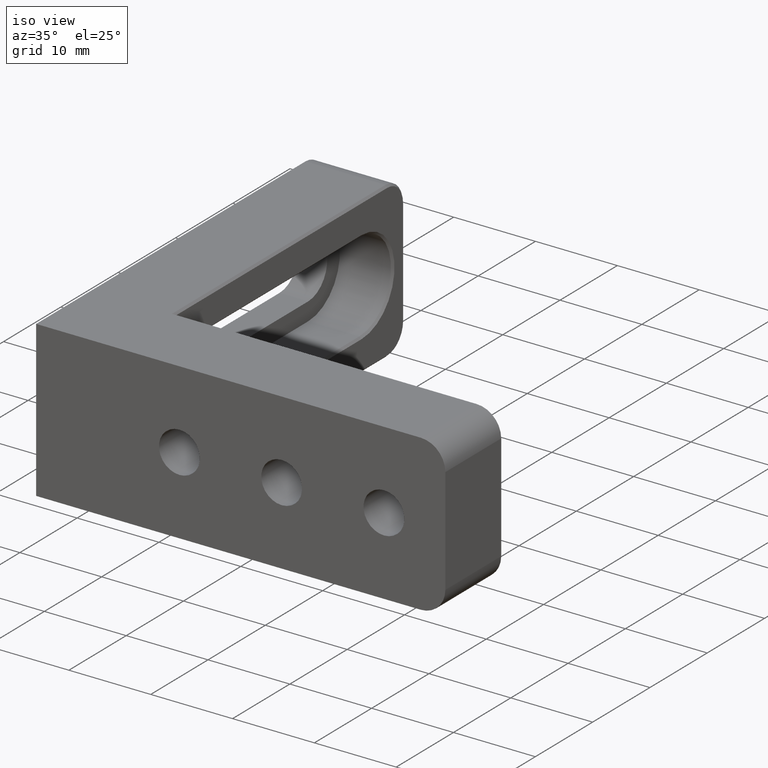
[diagram: clean part render]
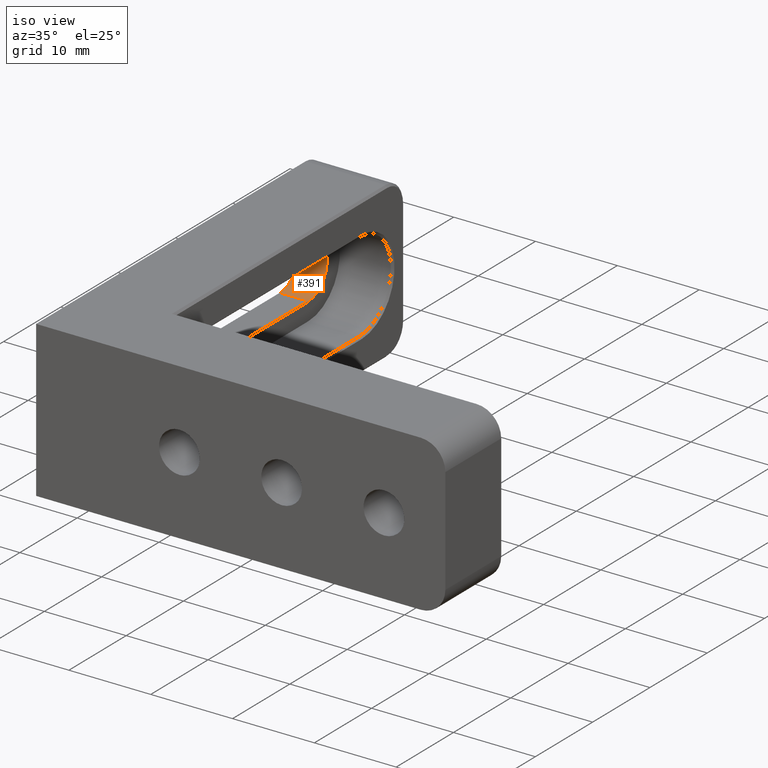
[diagram: same view with one face highlighted and labeled with its STEP entity id]
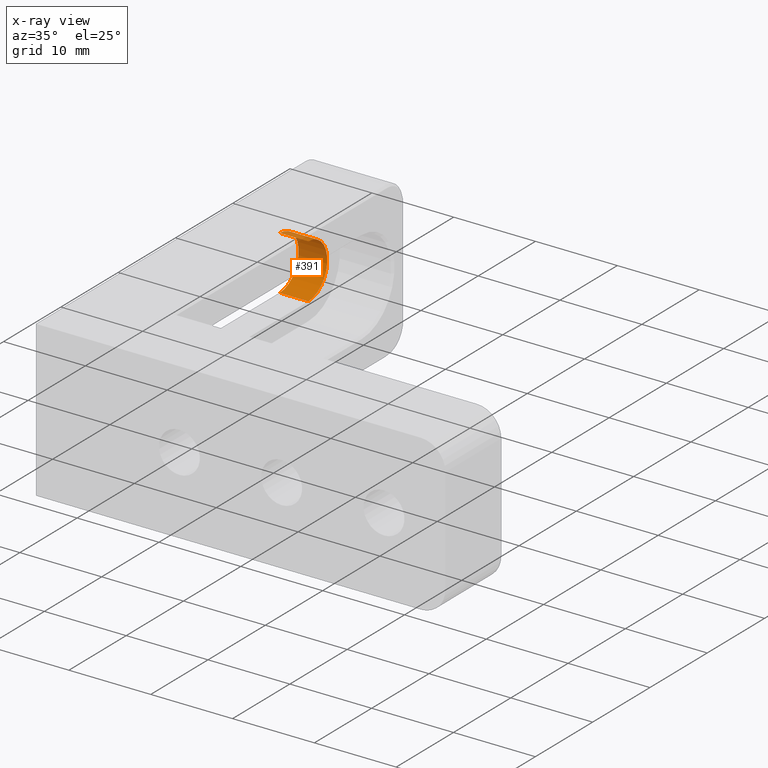
[diagram: x-ray of the same camera — body ghosted, the highlighted face saturated]
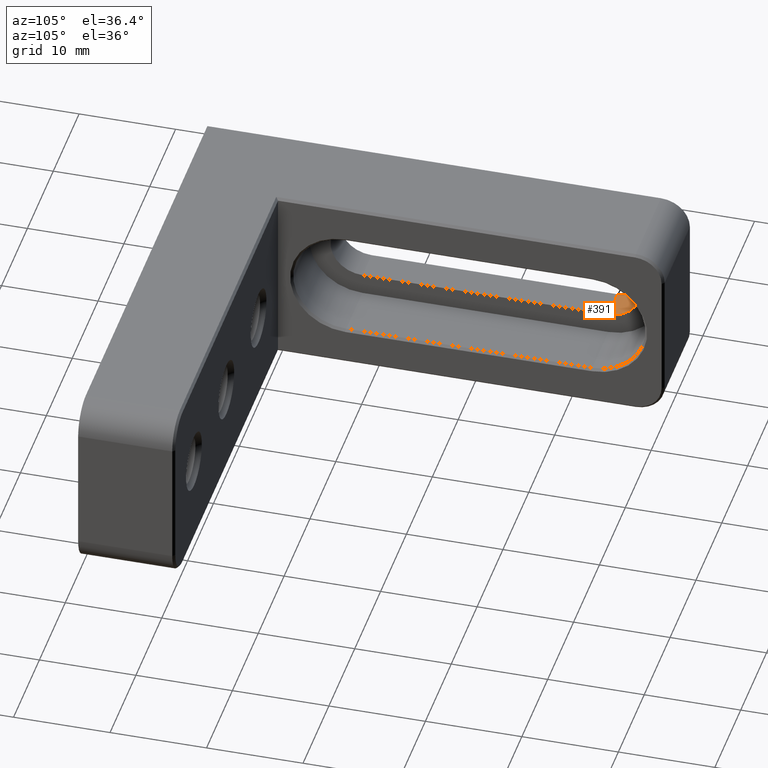
[diagram: same view with one face highlighted and labeled with its STEP entity id]
A machine part, iso view. The second image highlights one B-rep face of the part: STEP entity #391.
The next image is the same camera in x-ray: the body ghosted, the highlighted face saturated — about 45% of this face is hidden behind the body in this view.
A second angle (auxiliary view) of the same face is appended — the face is thin or edge-on in the first view.
In plain terms, the highlighted cylindrical surface (edge-blend (fillet) strip) has radius 3.3 mm, axis along (1, -0, -0).
Its self-contained STEP definition (entity closure, byte-faithful):
#43 = ORIENTED_EDGE ( 'NONE', *, *, #793, .F. ) ;
#51 = CARTESIAN_POINT ( 'NONE',  ( -21.49999999999999645, 42.50000000000000000, 3.300000000000001599 ) ) ;
#113 = CARTESIAN_POINT ( 'NONE',  ( -27.99999999999999289, 42.50000000000000000, -3.299999999999997158 ) ) ;
#180 = VERTEX_POINT ( 'NONE', #693 ) ;
#203 = EDGE_LOOP ( 'NONE', ( #471, #535, #854, #43 ) ) ;
#234 = VERTEX_POINT ( 'NONE', #407 ) ;
#237 = VECTOR ( 'NONE', #816, 1000.000000000000000 ) ;
#243 = DIRECTION ( 'NONE',  ( 1.000000000000000000, 0.000000000000000000, -1.826024711554533420E-16 ) ) ;
#294 = CIRCLE ( 'NONE', #776, 3.299999999999999378 ) ;
#317 = DIRECTION ( 'NONE',  ( 1.000000000000000000, -0.000000000000000000, -9.130123557772668334E-17 ) ) ;
#326 = DIRECTION ( 'NONE',  ( 1.000000000000000000, -0.000000000000000000, -9.130123557772668334E-17 ) ) ;
#340 = LINE ( 'NONE', #926, #237 ) ;
#391 = ADVANCED_FACE ( 'NONE', ( #1094 ), #806, .F. ) ;
#407 = CARTESIAN_POINT ( 'NONE',  ( -24.99999999999998934, 42.50000000000000000, 3.300000000000001599 ) ) ;
#442 = DIRECTION ( 'NONE',  ( 1.000000000000000000, 0.000000000000000000, -9.130123557772667102E-17 ) ) ;
#471 = ORIENTED_EDGE ( 'NONE', *, *, #1170, .T. ) ;
#535 = ORIENTED_EDGE ( 'NONE', *, *, #759, .T. ) ;
#589 = LINE ( 'NONE', #113, #963 ) ;
#591 = VERTEX_POINT ( 'NONE', #51 ) ;
#693 = CARTESIAN_POINT ( 'NONE',  ( -21.49999999999999645, 42.50000000000000000, -3.299999999999997158 ) ) ;
#710 = CARTESIAN_POINT ( 'NONE',  ( -21.49999999999999645, 42.50000000000000000, 1.962976564921123008E-15 ) ) ;
#714 = DIRECTION ( 'NONE',  ( 0.000000000000000000, 0.000000000000000000, -1.000000000000000000 ) ) ;
#720 = AXIS2_PLACEMENT_3D ( 'NONE', #1182, #326, #714 ) ;
#759 = EDGE_CURVE ( 'NONE', #180, #591, #1225, .T. ) ;
#776 = AXIS2_PLACEMENT_3D ( 'NONE', #1014, #243, #995 ) ;
#788 = CARTESIAN_POINT ( 'NONE',  ( -24.99999999999999289, 42.50000000000000000, -3.299999999999997158 ) ) ;
#793 = EDGE_CURVE ( 'NONE', #1055, #234, #294, .T. ) ;
#806 = CYLINDRICAL_SURFACE ( 'NONE', #720, 3.299999999999999378 ) ;
#816 = DIRECTION ( 'NONE',  ( 1.000000000000000000, -0.000000000000000000, -9.130123557772668334E-17 ) ) ;
#828 = EDGE_CURVE ( 'NONE', #234, #591, #340, .T. ) ;
#854 = ORIENTED_EDGE ( 'NONE', *, *, #828, .F. ) ;
#926 = CARTESIAN_POINT ( 'NONE',  ( -27.99999999999999289, 42.50000000000000000, 3.300000000000002043 ) ) ;
#963 = VECTOR ( 'NONE', #317, 1000.000000000000000 ) ;
#995 = DIRECTION ( 'NONE',  ( 0.000000000000000000, 0.000000000000000000, -1.000000000000000000 ) ) ;
#1014 = CARTESIAN_POINT ( 'NONE',  ( -24.99999999999999289, 42.50000000000000000, 2.282530889443166233E-15 ) ) ;
#1055 = VERTEX_POINT ( 'NONE', #788 ) ;
#1094 = FACE_OUTER_BOUND ( 'NONE', #203, .T. ) ;
#1170 = EDGE_CURVE ( 'NONE', #1055, #180, #589, .T. ) ;
#1182 = CARTESIAN_POINT ( 'NONE',  ( -27.99999999999999289, 42.50000000000000000, 2.556434596176346197E-15 ) ) ;
#1186 = DIRECTION ( 'NONE',  ( 0.000000000000000000, 0.000000000000000000, -1.000000000000000000 ) ) ;
#1201 = AXIS2_PLACEMENT_3D ( 'NONE', #710, #442, #1186 ) ;
#1225 = CIRCLE ( 'NONE', #1201, 3.299999999999999378 ) ;